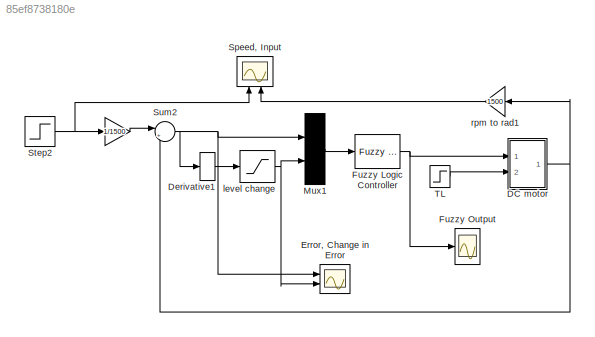
MODEL slx_85ef8738180e
KIND model
CONFIG AbsTol = auto
CONFIG EnableMultiTasking = on
CONFIG FixedStep = auto
CONFIG MaxStep = auto
CONFIG MinStep = auto
CONFIG RelTol = 1e-3
CONFIG SampleTimeConstraint = Unconstrained
CONFIG Solver = ode45
CONFIG SolverName = ode45
CONFIG StartTime = 0.0
CONFIG StopTime = 10
BLOCK [Gain]  
  Gain = 1/1500
  OutDataTypeStr = Inherit: Inherit via internal rule
  ParamDataTypeStr = Inherit: Inherit via internal rule
  SaturateOnIntegerOverflow = off
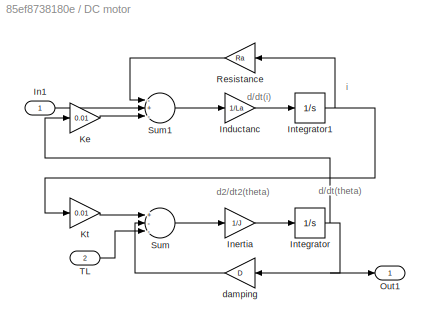
BLOCK [SubSystem] DC motor
  Ports = [2, 1]
  RequestExecContextInheritance = off
BLOCK [Inport] DC motor/In1
  IconDisplay = Port number
BLOCK [Gain] DC motor/Inductanc
  Gain = 1/La
BLOCK [Gain] DC motor/Inertia
  Gain = 1/J
BLOCK [Integrator] DC motor/Integrator
  Ports = [1, 1]
BLOCK [Integrator] DC motor/Integrator1
  Ports = [1, 1]
BLOCK [Gain] DC motor/Ke
  Gain = 0.01
BLOCK [Gain] DC motor/Kt
  Gain = 0.01
BLOCK [Outport] DC motor/Out1
  IconDisplay = Port number
BLOCK [Gain] DC motor/Resistance
  Gain = Ra
BLOCK [Sum] DC motor/Sum
  Inputs = +--
  Ports = [3, 1]
BLOCK [Sum] DC motor/Sum1
  Inputs = -+-
  Ports = [3, 1]
BLOCK [Inport] DC motor/TL
  IconDisplay = Port number
  Port = 2
BLOCK [Gain] DC motor/damping
  Gain = D
BLOCK [Derivative] Derivative1
BLOCK [Scope] Error, Change in Error
  Floating = off
  NumInputPorts = 2
  Ports = [2]
  ScopeSpecificationString = Simulink.scopes.TimeScopeBlockCfg('CurrentConfiguration', extmgr.ConfigurationSet(extmgr.Configuration('Core','General UI',true),extmgr.Configuration('Core','Source UI',true),extmgr.Configuration('Sources','WiredSimulink',true,'DataLoggingVariableName','ScopeData4','DataLoggingSaveFormat','StructureWithTime','DataLoggingDecimation','1'),extmgr.Configuration('Visuals','Time Domain',true,'Serialized...<+2244ch>
BLOCK [Reference] Fuzzy Logic Controller   REF=fuzblock/Fuzzy Logic   (lib defined in mdl_858b3b3e7478)
Controller
  Ports = [1, 1]
  SourceBlock = fuzblock/Fuzzy Logic \nController
  SourceProductBaseCode = FL
  SourceProductName = Fuzzy Logic Toolbox
  SourceType = Fuzzy Inference System
BLOCK [Scope] Fuzzy Output
  Floating = off
  NumInputPorts = 1
  Ports = [1]
  ScopeSpecificationString = Simulink.scopes.TimeScopeBlockCfg('CurrentConfiguration', extmgr.ConfigurationSet(extmgr.Configuration('Core','General UI',true),extmgr.Configuration('Core','Source UI',true),extmgr.Configuration('Sources','WiredSimulink',true,'DataLoggingVariableName','ScopeData1','DataLoggingSaveFormat','StructureWithTime','DataLoggingDecimation','1','DataLoggingDecimateData',true),extmgr.Configuration('Visuals'...<+1673ch>
BLOCK [Mux] Mux1
  Inputs = 2
  Ports = [2, 1]
BLOCK [Scope] Speed, Input
  Floating = off
  NumInputPorts = 2
  Ports = [2]
  ScopeSpecificationString = Simulink.scopes.TimeScopeBlockCfg('CurrentConfiguration', extmgr.ConfigurationSet(extmgr.Configuration('Core','General UI',true),extmgr.Configuration('Core','Source UI',true),extmgr.Configuration('Sources','WiredSimulink',true,'DataLoggingVariableName','ScopeData5','DataLoggingSaveFormat','StructureWithTime','DataLoggingDecimation','1','DataLoggingDecimateData',true),extmgr.Configuration('Visuals'...<+1838ch>
BLOCK [Step] Step2
  After = 1450
  Before = 800
  SampleTime = 0.001
  Time = 5
BLOCK [Sum] Sum2
  IconShape = round
  InputSameDT = off
  Inputs = |+-
  OutDataTypeStr = Inherit: Inherit via internal rule
  Ports = [2, 1]
  SaturateOnIntegerOverflow = off
BLOCK [Step] TL
  After = 0.002
  Before = 0.0001
  SampleTime = 0
  Time = 7
BLOCK [Saturate] level change
  InputPortMap = u0
  LowerLimit = -2
  Ports = [1, 1]
  UpperLimit = 2
BLOCK [Gain] rpm to rad1
  Gain = 1500
  OutDataTypeStr = Inherit: Inherit via internal rule
  ParamDataTypeStr = Inherit: Inherit via internal rule
  SaturateOnIntegerOverflow = off
ANNOTATION DC motor: d/dt(i)
ANNOTATION DC motor: d/dt(theta)
ANNOTATION DC motor: d2/dt2(theta)
ANNOTATION DC motor: i
LINE  :1 -> Sum2:1
LINE DC motor/In1:1 -> DC motor/Sum1:2
LINE DC motor/Inductanc:1 -> DC motor/Integrator1:1
LINE DC motor/Inertia:1 -> DC motor/Integrator:1
NET DC motor/Integrator1:1 -> DC motor/Kt:1, DC motor/Resistance:1
NET DC motor/Integrator:1 -> DC motor/Ke:1, DC motor/Out1:1, DC motor/damping:1
LINE DC motor/Ke:1 -> DC motor/Sum1:3
LINE DC motor/Kt:1 -> DC motor/Sum:1
LINE DC motor/Resistance:1 -> DC motor/Sum1:1
LINE DC motor/Sum1:1 -> DC motor/Inductanc:1
LINE DC motor/Sum:1 -> DC motor/Inertia:1
LINE DC motor/TL:1 -> DC motor/Sum:3
LINE DC motor/damping:1 -> DC motor/Sum:2
NET DC motor:1 -> Sum2:2, rpm to rad1:1
LINE Derivative1:1 -> level change:1
NET Fuzzy Logic Controller :1 -> DC motor:1, Fuzzy Output:1
LINE Mux1:1 -> Fuzzy Logic Controller :1
NET Step2:1 ->  :1, Speed, Input:1
NET Sum2:1 -> Derivative1:1, Error, Change in Error:1, Mux1:1
LINE TL:1 -> DC motor:2
NET level change:1 -> Error, Change in Error:2, Mux1:2
LINE rpm to rad1:1 -> Speed, Input:2
note: NET lines group one-source signal fan-out (src -> all destinations, sorted); 1:1 wires keep LINE
